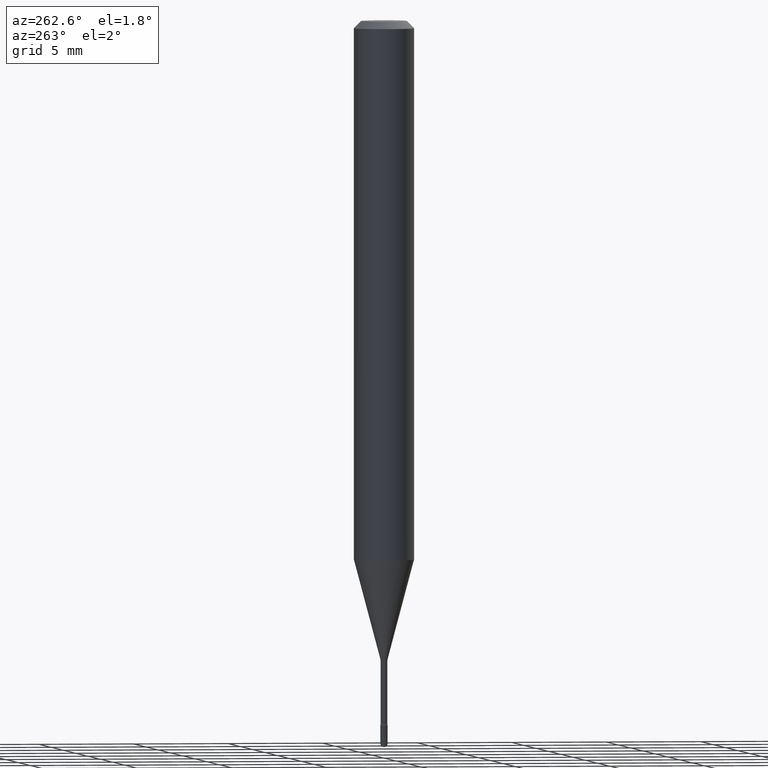
[diagram: clean part render]
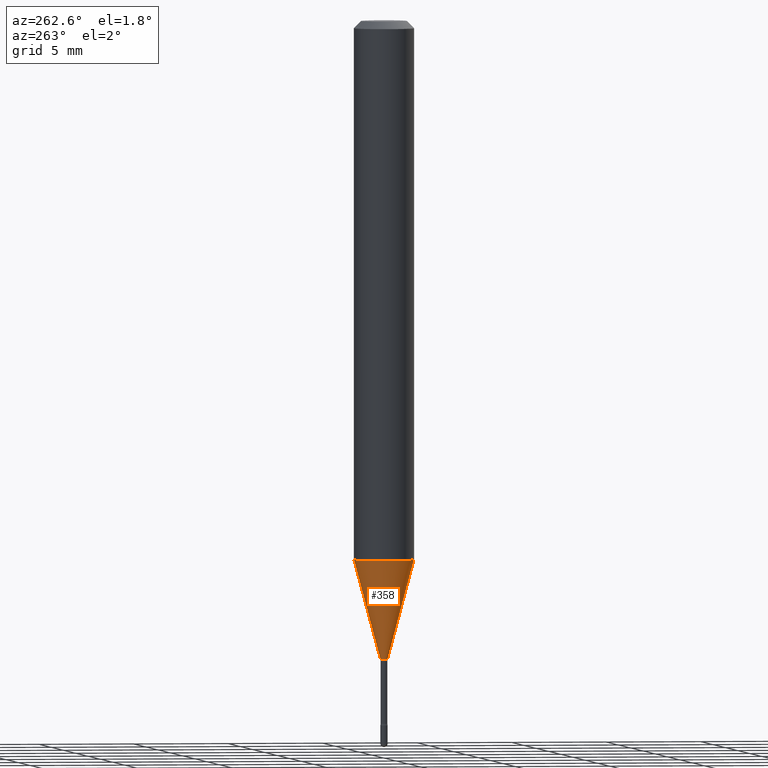
[diagram: same view with one face highlighted and labeled with its STEP entity id]
A machine part, auxiliary view. The second image highlights one B-rep face of the part: STEP entity #358.
In plain terms, the highlighted conical surface has half-angle 15 deg.
Its self-contained STEP definition (entity closure, byte-faithful):
#2 = EDGE_CURVE ( 'NONE', #88, #235, #210, .T. ) ;
#21 = CARTESIAN_POINT ( 'NONE',  ( 4.440892098500896347E-16, 0.06249999999999610034, -1.113057782720306754 ) ) ;
#35 = VERTEX_POINT ( 'NONE', #419 ) ;
#39 = CARTESIAN_POINT ( 'NONE',  ( -5.279896712710250158E-17, -0.007561112605668583904, -1.318092501787273330 ) ) ;
#49 = EDGE_LOOP ( 'NONE', ( #213, #387, #279, #161 ) ) ;
#64 = DIRECTION ( 'NONE',  ( -6.982962677686265922E-15, -1.000000000000000000, 0.000000000000000000 ) ) ;
#74 = FACE_OUTER_BOUND ( 'NONE', #49, .T. ) ;
#79 = AXIS2_PLACEMENT_3D ( 'NONE', #130, #295, #520 ) ;
#80 = DIRECTION ( 'NONE',  ( -2.445440204151626769E-29, 3.491522298583058262E-15, 1.000000000000000000 ) ) ;
#88 = VERTEX_POINT ( 'NONE', #536 ) ;
#120 = CARTESIAN_POINT ( 'NONE',  ( 5.372493636221887753E-17, 0.007561112605659379461, -1.318092501787273330 ) ) ;
#130 = CARTESIAN_POINT ( 'NONE',  ( 2.721916251408103540E-29, -3.886266067979366571E-15, -1.113057782720306532 ) ) ;
#161 = ORIENTED_EDGE ( 'NONE', *, *, #482, .F. ) ;
#181 = CARTESIAN_POINT ( 'NONE',  ( -4.364351673553643551E-16, -0.06250000000000388578, -1.113057782720306310 ) ) ;
#184 = EDGE_CURVE ( 'NONE', #35, #554, #281, .T. ) ;
#210 = LINE ( 'NONE', #39, #506 ) ;
#213 = ORIENTED_EDGE ( 'NONE', *, *, #184, .F. ) ;
#224 = EDGE_CURVE ( 'NONE', #35, #88, #479, .T. ) ;
#226 = AXIS2_PLACEMENT_3D ( 'NONE', #384, #564, #344 ) ;
#228 = CIRCLE ( 'NONE', #79, 0.06250000000000000000 ) ;
#235 = VERTEX_POINT ( 'NONE', #181 ) ;
#263 = DIRECTION ( 'NONE',  ( -1.807323732225329350E-15, -0.2588190451025180194, 0.9659258262890689783 ) ) ;
#279 = ORIENTED_EDGE ( 'NONE', *, *, #2, .T. ) ;
#281 = LINE ( 'NONE', #120, #469 ) ;
#285 = DIRECTION ( 'NONE',  ( 1.839019923739599526E-15, 0.2588190451025248473, 0.9659258262890670910 ) ) ;
#295 = DIRECTION ( 'NONE',  ( -2.445440204151626769E-29, 3.491522298583058262E-15, 1.000000000000000000 ) ) ;
#344 = DIRECTION ( 'NONE',  ( -6.982962677686265922E-15, -1.000000000000000000, 0.000000000000000000 ) ) ;
#347 = CONICAL_SURFACE ( 'NONE', #561, 0.007561112605663981683, 0.2617993877991501850 ) ;
#358 = ADVANCED_FACE ( 'NONE', ( #74 ), #347, .T. ) ;
#384 = CARTESIAN_POINT ( 'NONE',  ( 3.223316396661397957E-29, -4.602149361585393645E-15, -1.318092501787273330 ) ) ;
#387 = ORIENTED_EDGE ( 'NONE', *, *, #224, .T. ) ;
#419 = CARTESIAN_POINT ( 'NONE',  ( 2.489070731061544287E-16, 0.007561112605659379461, -1.318092501787273330 ) ) ;
#469 = VECTOR ( 'NONE', #285, 39.37007874015748143 ) ;
#479 = CIRCLE ( 'NONE', #226, 0.007561112605663981683 ) ;
#482 = EDGE_CURVE ( 'NONE', #554, #235, #228, .T. ) ;
#506 = VECTOR ( 'NONE', #263, 39.37007874015749564 ) ;
#520 = DIRECTION ( 'NONE',  ( -6.982962677686265922E-15, -1.000000000000000000, 4.370956789862821150E-15 ) ) ;
#536 = CARTESIAN_POINT ( 'NONE',  ( -5.279896712710250158E-17, -0.007561112605668583904, -1.318092501787273330 ) ) ;
#548 = CARTESIAN_POINT ( 'NONE',  ( 3.223316396661397957E-29, -4.602149361585393645E-15, -1.318092501787273330 ) ) ;
#554 = VERTEX_POINT ( 'NONE', #21 ) ;
#561 = AXIS2_PLACEMENT_3D ( 'NONE', #548, #80, #64 ) ;
#564 = DIRECTION ( 'NONE',  ( -2.445440204151626769E-29, 3.491522298583058262E-15, 1.000000000000000000 ) ) ;